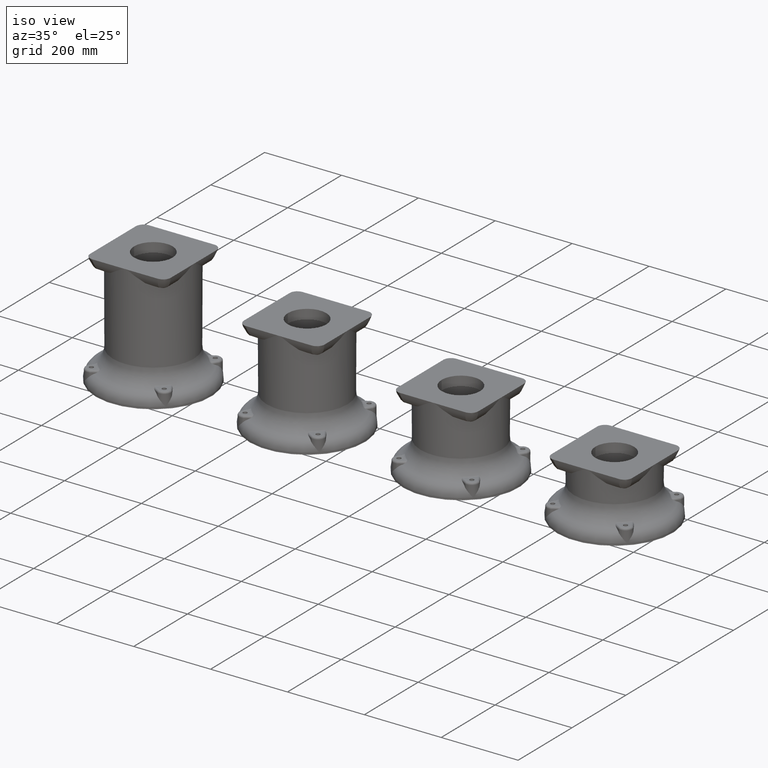
[diagram: clean part render]
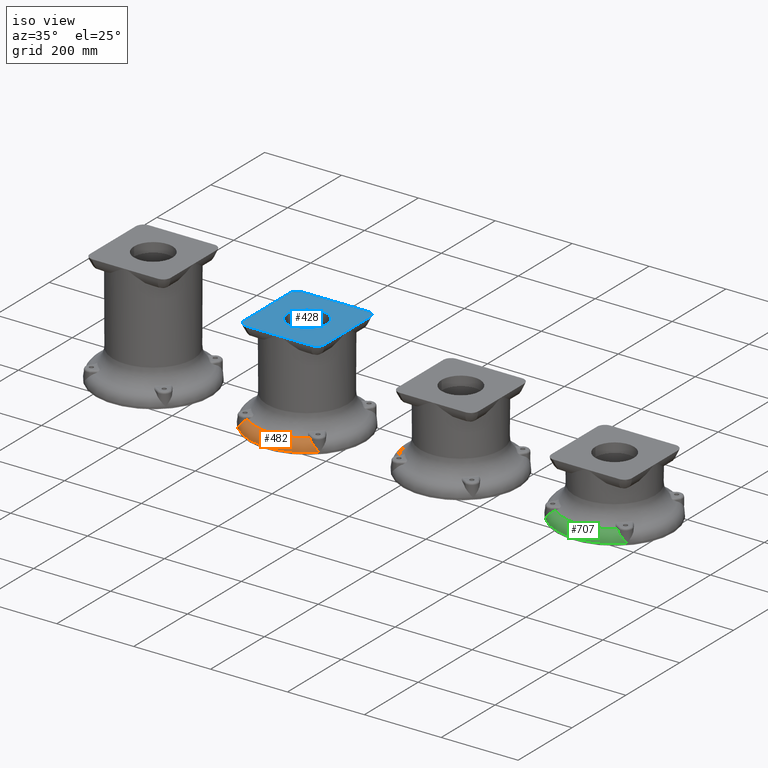
[diagram: same view with three faces highlighted in distinct colors, each labeled with its STEP entity id]
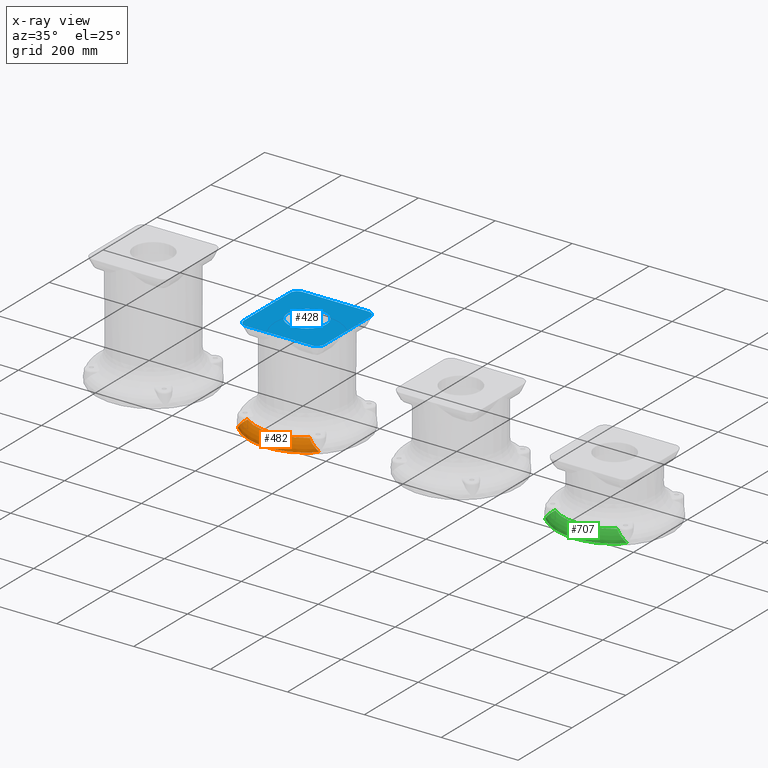
[diagram: x-ray of the same camera — body ghosted, the three highlighted faces saturated]
A machine part, iso view with three faces highlighted in distinct colors.
The next image is the same camera in x-ray (body ghosted, the three faces saturated) — at least one of them is partly hidden behind the body in this view.
Their STEP definitions:

[orange] entity #482 — the highlighted toroidal blend (fillet) surface has major radius 120 mm and minor (blend) radius 30 mm.
#482=ADVANCED_FACE('',(#1072),#1073,.T.);
#1072=FACE_OUTER_BOUND('',#3971,.T.);
#1073=TOROIDAL_SURFACE('',#3972,120.0,30.0);
#3971=EDGE_LOOP('',(#8235,#8236,#8237,#8238,#8239,#8240,#8241,#8242));
#3972=AXIS2_PLACEMENT_3D('',#8243,#8244,#8245);
#8235=ORIENTED_EDGE('',*,*,#10492,.F.);
#8236=ORIENTED_EDGE('',*,*,#10493,.T.);
#8237=ORIENTED_EDGE('',*,*,#10353,.T.);
#8238=ORIENTED_EDGE('',*,*,#10494,.T.);
#8239=ORIENTED_EDGE('',*,*,#10495,.F.);
#8240=ORIENTED_EDGE('',*,*,#10491,.T.);
#8241=ORIENTED_EDGE('',*,*,#10496,.F.);
#8242=ORIENTED_EDGE('',*,*,#10497,.T.);
#8243=CARTESIAN_POINT('',(0.0,0.0,80.0));
#8244=DIRECTION('',(0.0,0.0,1.0));
#8245=DIRECTION('',(1.0,0.0,0.0));
#10353=EDGE_CURVE('',#11524,#11522,#11525,.T.);
#10491=EDGE_CURVE('',#11750,#11743,#11753,.T.);
#10492=EDGE_CURVE('',#11754,#11755,#11756,.F.);
#10493=EDGE_CURVE('',#11754,#11524,#11757,.T.);
#10494=EDGE_CURVE('',#11522,#11758,#11759,.T.);
#10495=EDGE_CURVE('',#11750,#11758,#11760,.F.);
#10496=EDGE_CURVE('',#11761,#11743,#11762,.T.);
#10497=EDGE_CURVE('',#11761,#11755,#11763,.T.);
#11522=VERTEX_POINT('',#15293);
#11524=VERTEX_POINT('',#15300);
#11525=CIRCLE('',#15301,133.125);
#11743=VERTEX_POINT('',#16199);
#11750=VERTEX_POINT('',#16245);
#11753=B_SPLINE_CURVE_WITH_KNOTS('',3,(#16250,#16251,#16252,#16253,#16254,#16255,#16256,#16257,#16258,#16259,#16260,#16261,#16262,#16263,#16264,#16265,#16266,#16267,#16268,#16269,#16270,#16271,#16272,#16273),.UNSPECIFIED.,.F.,.F.,(4,1,1,1,1,1,1,1,1,1,1,1,1,1,1,1,1,1,1,1,1,4),(0.0,0.0210061949442978,0.0423546681236517,0.0640477933734809,0.0860878650487078,0.108477098512464,0.131217630401813,0.154311518682519,0.17776074250425,0.201567201867498,0.225732717112957,0.250259028243886,0.369757908210348,0.500911456809594,0.617665694748252,0.750104951457485,0.780043044277266,0.814663979793044,0.853969817670727,0.897961644722372,0.946639126762223,1.0),.UNSPECIFIED.);
#11754=VERTEX_POINT('',#16274);
#11755=VERTEX_POINT('',#16275);
#11756=B_SPLINE_CURVE_WITH_KNOTS('',3,(#16276,#16277,#16278,#16279,#16280,#16281,#16282,#16283),.UNSPECIFIED.,.F.,.F.,(4,2,2,4),(0.0021766173528335,0.00444668017102696,0.00558171158012371,0.00671674298922046),.UNSPECIFIED.);
#11757=B_SPLINE_CURVE_WITH_KNOTS('',3,(#16284,#16285,#16286,#16287,#16288,#16289,#16290,#16291),.UNSPECIFIED.,.F.,.F.,(4,2,2,4),(0.00345580596913878,0.00794917799839141,0.0101958640130178,0.0124425500276441),.UNSPECIFIED.);
#11758=VERTEX_POINT('',#16292);
#11759=B_SPLINE_CURVE_WITH_KNOTS('',3,(#16293,#16294,#16295,#16296,#16297,#16298),.UNSPECIFIED.,.F.,.F.,(4,2,4),(0.00405537014209206,0.00854739241191853,0.013039414681745),.UNSPECIFIED.);
#11760=B_SPLINE_CURVE_WITH_KNOTS('',3,(#16299,#16300,#16301,#16302,#16303,#16304),.UNSPECIFIED.,.F.,.F.,(4,2,4),(0.00138334369037796,0.00365447802298177,0.00592561235558557),.UNSPECIFIED.);
#11761=VERTEX_POINT('',#16305);
#11762=CIRCLE('',#16306,150.0);
#11763=B_SPLINE_CURVE_WITH_KNOTS('',3,(#16307,#16308,#16309,#16310,#16311,#16312,#16313,#16314,#16315,#16316,#16317,#16318,#16319,#16320,#16321,#16322,#16323,#16324,#16325,#16326,#16327,#16328,#16329,#16330,#16331,#16332),.UNSPECIFIED.,.F.,.F.,(4,1,1,1,1,1,1,1,1,1,1,1,1,1,1,1,1,1,1,1,1,1,1,4),(0.0,0.0252030475860433,0.0494092021767297,0.0726180614176942,0.0948293374264041,0.116042844623042,0.136258488055104,0.155476252241875,0.173696190563246,0.190918415217275,0.207143087772713,0.222370410347515,0.236600617453956,0.249833968567778,0.382140533692993,0.498793751715999,0.63003439929707,0.749611617240383,0.79432463478776,0.837828973966192,0.880135985314257,0.921257917638961,0.961207911487508,1.0),.UNSPECIFIED.);
#15293=CARTESIAN_POINT('',(80.609475381766,-105.945165551225,53.0234476813657));
#15300=CARTESIAN_POINT('',(-80.6094753817619,-105.945165551228,53.0234476813657));
#15301=AXIS2_PLACEMENT_3D('',#21183,#21184,#21185);
#16199=CARTESIAN_POINT('',(106.066017177984,-106.06601717798,80.0));
#16245=CARTESIAN_POINT('',(90.3884882851788,-110.930389357194,60.8503376849144));
#16250=CARTESIAN_POINT('',(90.3884882851792,-110.930389357193,60.8503376849144));
#16251=CARTESIAN_POINT('',(90.5184967929725,-110.953660650868,60.9723133199089));
#16252=CARTESIAN_POINT('',(90.7806321875757,-111.000582424327,61.2182520800253));
#16253=CARTESIAN_POINT('',(91.1756280480703,-111.059626751469,61.5937530672433));
#16254=CARTESIAN_POINT('',(91.5757280885319,-111.110824225616,61.9778914263354));
#16255=CARTESIAN_POINT('',(91.9806597029722,-111.153025087818,62.3709899998688));
#16256=CARTESIAN_POINT('',(92.3902568235033,-111.186193825936,62.7730220130926));
#16257=CARTESIAN_POINT('',(92.8043148266972,-111.209985105269,63.1840485026395));
#16258=CARTESIAN_POINT('',(93.2226300521873,-111.224134826452,63.6040977780695));
#16259=CARTESIAN_POINT('',(93.6449893438946,-111.228353110776,64.0331986516544));
#16260=CARTESIAN_POINT('',(94.0711707439575,-111.222354053141,64.4713689233363));
#16261=CARTESIAN_POINT('',(94.5009509311768,-111.205847548153,64.918625897911));
#16262=CARTESIAN_POINT('',(95.4909834585652,-111.143435162616,65.9617009110671));
#16263=CARTESIAN_POINT('',(97.0761373637495,-110.926487566561,67.6940638814795));
#16264=CARTESIAN_POINT('',(99.0924203367367,-110.394588029115,70.0527555717993));
#16265=CARTESIAN_POINT('',(101.063526464482,-109.615485544782,72.5268027516962));
#16266=CARTESIAN_POINT('',(102.414559096924,-108.889383032899,74.362170597017));
#16267=CARTESIAN_POINT('',(103.320158056574,-108.310746679848,75.6612748401586));
#16268=CARTESIAN_POINT('',(103.787467879008,-107.99199107085,76.34705832598));
#16269=CARTESIAN_POINT('',(104.304252990625,-107.613227950719,77.126881085657));
#16270=CARTESIAN_POINT('',(104.864307968284,-107.167958845092,78.0009624028675));
#16271=CARTESIAN_POINT('',(105.463288328425,-106.651994903792,78.9692608231564));
#16272=CARTESIAN_POINT('',(105.859052587199,-106.267229780166,79.6460655366039));
#16273=CARTESIAN_POINT('',(106.066017177984,-106.06601717798,80.0));
#16274=CARTESIAN_POINT('',(-87.2149964624134,-109.75886492528,57.8114653002072));
#16275=CARTESIAN_POINT('',(-90.3884882851599,-110.930389357195,60.8503376849013));
#16276=CARTESIAN_POINT('',(-90.38848828516,-110.930389357195,60.8503376849013));
#16277=CARTESIAN_POINT('',(-89.8408025055957,-110.828642500508,60.3380149514585));
#16278=CARTESIAN_POINT('',(-89.3020510636323,-110.68165141325,59.8264272403407));
#16279=CARTESIAN_POINT('',(-88.5055357405004,-110.389460165435,59.0629312510746));
#16280=CARTESIAN_POINT('',(-88.2414514415667,-110.279736976147,58.8085233771018));
#16281=CARTESIAN_POINT('',(-87.7221537478758,-110.037095134328,58.3059126957033));
#16282=CARTESIAN_POINT('',(-87.4664987506371,-109.904069839088,58.0572909992695));
#16283=CARTESIAN_POINT('',(-87.2149964624134,-109.75886492528,57.8114653002072));
#16284=CARTESIAN_POINT('',(-87.2149964624134,-109.75886492528,57.8114653002072));
#16285=CARTESIAN_POINT('',(-86.2230818285435,-109.186182744402,56.8419388994601));
#16286=CARTESIAN_POINT('',(-85.1751990717371,-108.581187352681,55.9590136282079));
#16287=CARTESIAN_POINT('',(-83.5217607815456,-107.62657431075,54.7609097135984));
#16288=CARTESIAN_POINT('',(-82.956961391847,-107.30048723107,54.3826678854864));
#16289=CARTESIAN_POINT('',(-81.7998524174823,-106.632430053238,53.6687515663792));
#16290=CARTESIAN_POINT('',(-81.2080355015927,-106.290744397539,53.3335940060179));
#16291=CARTESIAN_POINT('',(-80.6094753817618,-105.945165551228,53.023447681366));
#16292=CARTESIAN_POINT('',(87.2149964624022,-109.758864925268,57.8114653001925));
#16293=CARTESIAN_POINT('',(80.6094753817659,-105.945165551225,53.0234476813659));
#16294=CARTESIAN_POINT('',(81.7936149025159,-106.628828822288,53.637014319149));
#16295=CARTESIAN_POINT('',(82.9386904090717,-107.28993847424,54.3406931138015));
#16296=CARTESIAN_POINT('',(85.1471595739555,-108.564998741083,55.9364729037604));
#16297=CARTESIAN_POINT('',(86.2151854333945,-109.181623758532,56.8342207316777));
#16298=CARTESIAN_POINT('',(87.2149964624022,-109.758864925268,57.8114653001925));
#16299=CARTESIAN_POINT('',(87.2149964624021,-109.758864925268,57.8114653001925));
#16300=CARTESIAN_POINT('',(87.7164948769745,-110.048405169921,58.3016445316086));
#16301=CARTESIAN_POINT('',(88.2323208855715,-110.288629096117,58.8009819728859));
#16302=CARTESIAN_POINT('',(89.2909985489842,-110.678192069749,59.8158923157082));
#16303=CARTESIAN_POINT('',(89.836435940872,-110.82783129771,60.3339303276456));
#16304=CARTESIAN_POINT('',(90.3884882851787,-110.930389357194,60.8503376849145));
#16305=CARTESIAN_POINT('',(-106.06601717798,-106.066017177984,80.0));
#16306=AXIS2_PLACEMENT_3D('',#21416,#21417,#21418);
#16307=CARTESIAN_POINT('',(-106.06601717798,-106.066017177985,80.0));
#16308=CARTESIAN_POINT('',(-105.968971189127,-106.161774975449,79.8328512592067));
#16309=CARTESIAN_POINT('',(-105.778717813329,-106.349502922189,79.5051652561849));
#16310=CARTESIAN_POINT('',(-105.491231617313,-106.617172317141,79.0235106197562));
#16311=CARTESIAN_POINT('',(-105.210392823943,-106.868238076357,78.5617872141092));
#16312=CARTESIAN_POINT('',(-104.936407276213,-107.102835167885,78.1200573695063));
#16313=CARTESIAN_POINT('',(-104.670133577737,-107.321792678855,77.6983716778219));
#16314=CARTESIAN_POINT('',(-104.412216965292,-107.525736638938,77.2967552304883));
#16315=CARTESIAN_POINT('',(-104.163307595137,-107.715313508247,76.9152145243272));
#16316=CARTESIAN_POINT('',(-103.924006751046,-107.891132850618,76.5537391025332));
#16317=CARTESIAN_POINT('',(-103.694881531127,-108.053779952026,76.2123041011897));
#16318=CARTESIAN_POINT('',(-103.476461100707,-108.203812631607,75.8908732831169));
#16319=CARTESIAN_POINT('',(-103.269242267249,-108.34175705007,75.5893988151051));
#16320=CARTESIAN_POINT('',(-103.07367666722,-108.468121072659,75.3078317934808));
#16321=CARTESIAN_POINT('',(-102.33535985372,-108.931830456697,74.2545010860823));
#16322=CARTESIAN_POINT('',(-101.06630539394,-109.614119296727,72.5305447096651));
#16323=CARTESIAN_POINT('',(-99.0962617772582,-110.393319262645,70.0573912973104));
#16324=CARTESIAN_POINT('',(-97.0798147239715,-110.92580781197,67.6981899418642));
#16325=CARTESIAN_POINT('',(-95.3775902078167,-111.159072262467,65.8377081554822));
#16326=CARTESIAN_POINT('',(-94.1507222688518,-111.224218902395,64.5516131473143));
#16327=CARTESIAN_POINT('',(-93.370568814047,-111.230705388429,63.7518532738585));
#16328=CARTESIAN_POINT('',(-92.6037852917478,-111.203639321468,62.982512686266));
#16329=CARTESIAN_POINT('',(-91.8515812452578,-111.143918394103,62.2436732974212));
#16330=CARTESIAN_POINT('',(-91.1154986097536,-111.056338197709,61.5341476344565));
#16331=CARTESIAN_POINT('',(-90.6284376433044,-110.971958702799,61.0760287830026));
#16332=CARTESIAN_POINT('',(-90.3884882851601,-110.930389357195,60.8503376849013));
#21183=CARTESIAN_POINT('',(0.0,0.0,53.0234476813657));
#21184=DIRECTION('',(0.0,0.0,1.0));
#21185=DIRECTION('',(1.0,0.0,0.0));
#21416=CARTESIAN_POINT('',(0.0,0.0,80.0));
#21417=DIRECTION('',(0.0,0.0,1.0));
#21418=DIRECTION('',(1.0,0.0,0.0));

[blue] entity #428 — the highlighted planar face has unit normal (-0, 0, -1).
#428=ADVANCED_FACE('',(#956,#957),#958,.F.);
#956=FACE_BOUND('',#2993,.T.);
#957=FACE_OUTER_BOUND('',#2994,.T.);
#958=PLANE('',#2995);
#2993=EDGE_LOOP('',(#7835));
#2994=EDGE_LOOP('',(#7836,#7837,#7838,#7839,#7840,#7841,#7842,#7843,#7844,#7845,#7846,#7847));
#2995=AXIS2_PLACEMENT_3D('',#7848,#7849,#7850);
#7835=ORIENTED_EDGE('',*,*,#10301,.T.);
#7836=ORIENTED_EDGE('',*,*,#10302,.F.);
#7837=ORIENTED_EDGE('',*,*,#10303,.F.);
#7838=ORIENTED_EDGE('',*,*,#10304,.F.);
#7839=ORIENTED_EDGE('',*,*,#10305,.F.);
#7840=ORIENTED_EDGE('',*,*,#10306,.F.);
#7841=ORIENTED_EDGE('',*,*,#10307,.F.);
#7842=ORIENTED_EDGE('',*,*,#10308,.F.);
#7843=ORIENTED_EDGE('',*,*,#10309,.F.);
#7844=ORIENTED_EDGE('',*,*,#10310,.F.);
#7845=ORIENTED_EDGE('',*,*,#10311,.F.);
#7846=ORIENTED_EDGE('',*,*,#10312,.F.);
#7847=ORIENTED_EDGE('',*,*,#10313,.F.);
#7848=CARTESIAN_POINT('',(0.0,0.0,-165.0));
#7849=DIRECTION('',(0.0,0.0,1.0));
#7850=DIRECTION('',(1.0,0.0,0.0));
#10301=EDGE_CURVE('',#11428,#11428,#11429,.T.);
#10302=EDGE_CURVE('',#11430,#11431,#11432,.T.);
#10303=EDGE_CURVE('',#11433,#11430,#11434,.T.);
#10304=EDGE_CURVE('',#11435,#11433,#11436,.F.);
#10305=EDGE_CURVE('',#11437,#11435,#11438,.T.);
#10306=EDGE_CURVE('',#11439,#11437,#11440,.T.);
#10307=EDGE_CURVE('',#11441,#11439,#11442,.F.);
#10308=EDGE_CURVE('',#11443,#11441,#11444,.T.);
#10309=EDGE_CURVE('',#11445,#11443,#11446,.T.);
#10310=EDGE_CURVE('',#11447,#11445,#11448,.F.);
#10311=EDGE_CURVE('',#11449,#11447,#11450,.T.);
#10312=EDGE_CURVE('',#11451,#11449,#11452,.T.);
#10313=EDGE_CURVE('',#11431,#11451,#11453,.F.);
#11428=VERTEX_POINT('',#14684);
#11429=CIRCLE('',#14685,50.0);
#11430=VERTEX_POINT('',#14686);
#11431=VERTEX_POINT('',#14687);
#11432=LINE('',#14688,#14689);
#11433=VERTEX_POINT('',#14690);
#11434=LINE('',#14691,#14692);
#11435=VERTEX_POINT('',#14693);
#11436=B_SPLINE_CURVE_WITH_KNOTS('',3,(#14694,#14695,#14696,#14697,#14698,#14699,#14700,#14701,#14702,#14703,#14704,#14705,#14706,#14707,#14708,#14709,#14710,#14711,#14712,#14713,#14714,#14715,#14716,#14717,#14718,#14719),.UNSPECIFIED.,.F.,.F.,(4,2,2,2,2,2,2,2,2,2,2,2,4),(1.22318236764312E-007,0.00387864147614489,0.00581790105509893,0.00775716063405297,0.011635679791961,0.013574939370915,0.0155141989498691,0.0193927181077771,0.0213319776867312,0.0232712372656852,0.0252104968446392,0.0271497564235932,0.0310282755815013),.UNSPECIFIED.);
#11437=VERTEX_POINT('',#14720);
#11438=LINE('',#14721,#14722);
#11439=VERTEX_POINT('',#14723);
#11440=LINE('',#14724,#14725);
#11441=VERTEX_POINT('',#14726);
#11442=B_SPLINE_CURVE_WITH_KNOTS('',3,(#14727,#14728,#14729,#14730,#14731,#14732,#14733,#14734,#14735,#14736,#14737,#14738,#14739,#14740,#14741,#14742,#14743,#14744,#14745,#14746,#14747,#14748,#14749,#14750,#14751,#14752),.UNSPECIFIED.,.F.,.F.,(4,2,2,2,2,2,2,2,2,2,2,2,4),(1.22318236821379E-007,0.00387864147614483,0.00581790105509885,0.00775716063405286,0.0116356797919609,0.0135749393709149,0.0155141989498689,0.019392718107777,0.021331977686731,0.0232712372656851,0.0252104968446391,0.0271497564235932,0.0310282755815013),.UNSPECIFIED.);
#11443=VERTEX_POINT('',#14753);
#11444=LINE('',#14754,#14755);
#11445=VERTEX_POINT('',#14756);
#11446=LINE('',#14757,#14758);
#11447=VERTEX_POINT('',#14759);
#11448=B_SPLINE_CURVE_WITH_KNOTS('',3,(#14760,#14761,#14762,#14763,#14764,#14765,#14766,#14767,#14768,#14769,#14770,#14771,#14772,#14773,#14774,#14775,#14776,#14777,#14778,#14779,#14780,#14781,#14782,#14783,#14784,#14785),.UNSPECIFIED.,.F.,.F.,(4,2,2,2,2,2,2,2,2,2,2,2,4),(1.22318236848725E-007,0.00387864147614494,0.00581790105509897,0.00775716063405301,0.011635679791961,0.0135749393709151,0.0155141989498691,0.0193927181077771,0.0213319776867312,0.0232712372656852,0.0252104968446392,0.0271497564235933,0.0310282755815014),.UNSPECIFIED.);
#11449=VERTEX_POINT('',#14786);
#11450=LINE('',#14787,#14788);
#11451=VERTEX_POINT('',#14789);
#11452=LINE('',#14790,#14791);
#11453=B_SPLINE_CURVE_WITH_KNOTS('',3,(#14792,#14793,#14794,#14795,#14796,#14797,#14798,#14799,#14800,#14801,#14802,#14803,#14804,#14805,#14806,#14807,#14808,#14809,#14810,#14811,#14812,#14813,#14814,#14815,#14816,#14817),.UNSPECIFIED.,.F.,.F.,(4,2,2,2,2,2,2,2,2,2,2,2,4),(1.22318228863855E-007,0.00387864129410259,0.00581790078203946,0.00775716026997632,0.0116356792458501,0.013574938733787,0.0155141982217238,0.0193927171975976,0.0213319766855345,0.0232712361734714,0.0252104956614083,0.0271497551493452,0.0310282741252189),.UNSPECIFIED.);
#14684=CARTESIAN_POINT('',(50.0,8.32667268468867E-014,-165.0));
#14685=AXIS2_PLACEMENT_3D('',#21159,#21160,#21161);
#14686=CARTESIAN_POINT('',(1.2490009027033E-013,105.0,-165.0));
#14687=CARTESIAN_POINT('',(-85.1318170254261,105.0,-165.0));
#14688=CARTESIAN_POINT('',(105.0,105.0,-165.0));
#14689=VECTOR('',#21162,1.0);
#14690=CARTESIAN_POINT('',(85.1318170254262,105.0,-165.0));
#14691=CARTESIAN_POINT('',(105.0,105.0,-165.0));
#14692=VECTOR('',#21163,1.0);
#14693=CARTESIAN_POINT('',(105.0,85.1318170254262,-165.0));
#14694=CARTESIAN_POINT('',(85.1318169962303,104.999793024721,-165.0));
#14695=CARTESIAN_POINT('',(86.4439731691245,104.999607932492,-165.0));
#14696=CARTESIAN_POINT('',(87.7329492499264,104.865938930835,-165.0));
#14697=CARTESIAN_POINT('',(89.6346459734306,104.482501019797,-165.0));
#14698=CARTESIAN_POINT('',(90.2631986699914,104.323901914006,-165.0));
#14699=CARTESIAN_POINT('',(91.509518512505,103.944594481515,-165.0));
#14700=CARTESIAN_POINT('',(92.1292624261452,103.722758874769,-165.0));
#14701=CARTESIAN_POINT('',(93.933962238171,102.977166623461,-165.0));
#14702=CARTESIAN_POINT('',(95.0768850562862,102.371587334919,-165.0));
#14703=CARTESIAN_POINT('',(96.6999604822827,101.29865163689,-165.0));
#14704=CARTESIAN_POINT('',(97.2268693634915,100.91232145208,-165.0));
#14705=CARTESIAN_POINT('',(98.2427529879269,100.085130616114,-165.0));
#14706=CARTESIAN_POINT('',(98.7255333381023,99.6495041044289,-165.0));
#14707=CARTESIAN_POINT('',(100.098926681934,98.2770011987545,-165.0));
#14708=CARTESIAN_POINT('',(100.915442622427,97.2752462568297,-165.0));
#14709=CARTESIAN_POINT('',(101.996345890965,95.6466423247208,-165.0));
#14710=CARTESIAN_POINT('',(102.332841129038,95.0811023230436,-165.0));
#14711=CARTESIAN_POINT('',(102.943426151715,93.9320172409059,-165.0));
#14712=CARTESIAN_POINT('',(103.21956540807,93.3456854344183,-165.0));
#14713=CARTESIAN_POINT('',(103.714829030738,92.1499656079294,-165.0));
#14714=CARTESIAN_POINT('',(103.933951929479,91.5405769944578,-165.0));
#14715=CARTESIAN_POINT('',(104.314318791248,90.2983941431457,-165.0));
#14716=CARTESIAN_POINT('',(104.476059344235,89.6629693822896,-165.0));
#14717=CARTESIAN_POINT('',(104.865996075024,87.7397388094333,-165.0));
#14718=CARTESIAN_POINT('',(104.999608025533,86.4433135832475,-165.0));
#14719=CARTESIAN_POINT('',(104.999793024721,85.1318169962305,-165.0));
#14720=CARTESIAN_POINT('',(105.0,0.0,-165.0));
#14721=CARTESIAN_POINT('',(105.0,-105.0,-165.0));
#14722=VECTOR('',#21164,1.0);
#14723=CARTESIAN_POINT('',(105.0,-85.1318170254261,-165.0));
#14724=CARTESIAN_POINT('',(105.0,-105.0,-165.0));
#14725=VECTOR('',#21165,1.0);
#14726=CARTESIAN_POINT('',(85.1318170254262,-105.0,-165.0));
#14727=CARTESIAN_POINT('',(104.999793024721,-85.1318169962303,-165.0));
#14728=CARTESIAN_POINT('',(104.999607932492,-86.4439731691246,-165.0));
#14729=CARTESIAN_POINT('',(104.865938930835,-87.7329492499263,-165.0));
#14730=CARTESIAN_POINT('',(104.482501019797,-89.6346459734306,-165.0));
#14731=CARTESIAN_POINT('',(104.323901914006,-90.2631986699913,-165.0));
#14732=CARTESIAN_POINT('',(103.944594481515,-91.5095185125049,-165.0));
#14733=CARTESIAN_POINT('',(103.722758874769,-92.1292624261451,-165.0));
#14734=CARTESIAN_POINT('',(102.977166623461,-93.9339622381709,-165.0));
#14735=CARTESIAN_POINT('',(102.371587334919,-95.076885056286,-165.0));
#14736=CARTESIAN_POINT('',(101.298651636889,-96.6999604822826,-165.0));
#14737=CARTESIAN_POINT('',(100.91232145208,-97.2268693634914,-165.0));
#14738=CARTESIAN_POINT('',(100.085130616114,-98.2427529879268,-165.0));
#14739=CARTESIAN_POINT('',(99.6495041044288,-98.7255333381022,-165.0));
#14740=CARTESIAN_POINT('',(98.2770011987544,-100.098926681933,-165.0));
#14741=CARTESIAN_POINT('',(97.2752462568296,-100.915442622427,-165.0));
#14742=CARTESIAN_POINT('',(95.6466423247208,-101.996345890965,-165.0));
#14743=CARTESIAN_POINT('',(95.0811023230436,-102.332841129038,-165.0));
#14744=CARTESIAN_POINT('',(93.9320172409059,-102.943426151715,-165.0));
#14745=CARTESIAN_POINT('',(93.3456854344183,-103.21956540807,-165.0));
#14746=CARTESIAN_POINT('',(92.1499656079295,-103.714829030737,-165.0));
#14747=CARTESIAN_POINT('',(91.5405769944578,-103.933951929479,-165.0));
#14748=CARTESIAN_POINT('',(90.2983941431457,-104.314318791248,-165.0));
#14749=CARTESIAN_POINT('',(89.6629693822895,-104.476059344235,-165.0));
#14750=CARTESIAN_POINT('',(87.7397388094333,-104.865996075024,-165.0));
#14751=CARTESIAN_POINT('',(86.4433135832476,-104.999608025533,-165.0));
#14752=CARTESIAN_POINT('',(85.1318169962306,-104.999793024721,-165.0));
#14753=CARTESIAN_POINT('',(1.2490009027033E-013,-105.0,-165.0));
#14754=CARTESIAN_POINT('',(-105.0,-105.0,-165.0));
#14755=VECTOR('',#21166,1.0);
#14756=CARTESIAN_POINT('',(-85.1318170254261,-105.0,-165.0));
#14757=CARTESIAN_POINT('',(-105.0,-105.0,-165.0));
#14758=VECTOR('',#21167,1.0);
#14759=CARTESIAN_POINT('',(-105.0,-85.1318170254261,-165.0));
#14760=CARTESIAN_POINT('',(-85.1318169962304,-104.999793024721,-165.0));
#14761=CARTESIAN_POINT('',(-86.4439731691246,-104.999607932492,-165.0));
#14762=CARTESIAN_POINT('',(-87.7329492499264,-104.865938930835,-165.0));
#14763=CARTESIAN_POINT('',(-89.6346459734306,-104.482501019797,-165.0));
#14764=CARTESIAN_POINT('',(-90.2631986699915,-104.323901914006,-165.0));
#14765=CARTESIAN_POINT('',(-91.509518512505,-103.944594481515,-165.0));
#14766=CARTESIAN_POINT('',(-92.1292624261452,-103.722758874769,-165.0));
#14767=CARTESIAN_POINT('',(-93.933962238171,-102.977166623461,-165.0));
#14768=CARTESIAN_POINT('',(-95.0768850562862,-102.371587334919,-165.0));
#14769=CARTESIAN_POINT('',(-96.6999604822827,-101.298651636889,-165.0));
#14770=CARTESIAN_POINT('',(-97.2268693634916,-100.91232145208,-165.0));
#14771=CARTESIAN_POINT('',(-98.242752987927,-100.085130616114,-165.0));
#14772=CARTESIAN_POINT('',(-98.7255333381023,-99.6495041044286,-165.0));
#14773=CARTESIAN_POINT('',(-100.098926681934,-98.2770011987543,-165.0));
#14774=CARTESIAN_POINT('',(-100.915442622427,-97.2752462568295,-165.0));
#14775=CARTESIAN_POINT('',(-101.996345890965,-95.6466423247205,-165.0));
#14776=CARTESIAN_POINT('',(-102.332841129038,-95.0811023230433,-165.0));
#14777=CARTESIAN_POINT('',(-102.943426151715,-93.9320172409057,-165.0));
#14778=CARTESIAN_POINT('',(-103.21956540807,-93.3456854344181,-165.0));
#14779=CARTESIAN_POINT('',(-103.714829030737,-92.1499656079292,-165.0));
#14780=CARTESIAN_POINT('',(-103.933951929479,-91.5405769944575,-165.0));
#14781=CARTESIAN_POINT('',(-104.314318791248,-90.2983941431454,-165.0));
#14782=CARTESIAN_POINT('',(-104.476059344235,-89.6629693822892,-165.0));
#14783=CARTESIAN_POINT('',(-104.865996075024,-87.739738809433,-165.0));
#14784=CARTESIAN_POINT('',(-104.999608025533,-86.4433135832472,-165.0));
#14785=CARTESIAN_POINT('',(-104.999793024721,-85.1318169962301,-165.0));
#14786=CARTESIAN_POINT('',(-105.0,1.2490009027033E-013,-165.0));
#14787=CARTESIAN_POINT('',(-105.0,105.0,-165.0));
#14788=VECTOR('',#21168,1.0);
#14789=CARTESIAN_POINT('',(-105.0,85.1318170254262,-165.0));
#14790=CARTESIAN_POINT('',(-105.0,105.0,-165.0));
#14791=VECTOR('',#21169,1.0);
#14792=CARTESIAN_POINT('',(-104.999793024721,85.1318169962305,-165.0));
#14793=CARTESIAN_POINT('',(-104.999607932488,86.4439731920991,-165.0));
#14794=CARTESIAN_POINT('',(-104.86593892682,87.7329492441071,-165.0));
#14795=CARTESIAN_POINT('',(-104.482501045146,89.6346458605727,-165.0));
#14796=CARTESIAN_POINT('',(-104.323901954912,90.2631985106765,-165.0));
#14797=CARTESIAN_POINT('',(-103.944594572109,91.5095182397382,-165.0));
#14798=CARTESIAN_POINT('',(-103.722758966517,92.1292621869831,-165.0));
#14799=CARTESIAN_POINT('',(-102.977166673804,93.9339621504939,-165.0));
#14800=CARTESIAN_POINT('',(-102.371587393107,95.0768849310604,-165.0));
#14801=CARTESIAN_POINT('',(-101.298651868505,96.6999601505085,-165.0));
#14802=CARTESIAN_POINT('',(-100.912321941946,97.2268687291514,-165.0));
#14803=CARTESIAN_POINT('',(-100.085130901733,98.2427526698844,-165.0));
#14804=CARTESIAN_POINT('',(-99.6495043076842,98.7255331243795,-165.0));
#14805=CARTESIAN_POINT('',(-98.277001244924,100.098926656405,-165.0));
#14806=CARTESIAN_POINT('',(-97.2752463171475,100.915442557294,-165.0));
#14807=CARTESIAN_POINT('',(-95.6466426941111,101.996345658351,-165.0));
#14808=CARTESIAN_POINT('',(-95.0811026357998,102.332840953627,-165.0));
#14809=CARTESIAN_POINT('',(-93.9320173755611,102.943426089386,-165.0));
#14810=CARTESIAN_POINT('',(-93.3456855162316,103.219565371606,-165.0));
#14811=CARTESIAN_POINT('',(-92.1499656645216,103.714829009874,-165.0));
#14812=CARTESIAN_POINT('',(-91.5405770786126,103.9339518982,-165.0));
#14813=CARTESIAN_POINT('',(-90.2983943736931,104.314318726163,-165.0));
#14814=CARTESIAN_POINT('',(-89.6629698185469,104.476059244409,-165.0));
#14815=CARTESIAN_POINT('',(-87.7397389402465,104.86599607125,-165.0));
#14816=CARTESIAN_POINT('',(-86.4433135986769,104.999608025531,-165.0));
#14817=CARTESIAN_POINT('',(-85.1318169962302,104.999793024721,-165.0));
#21159=CARTESIAN_POINT('',(7.63278329429795E-014,8.32667268468867E-014,-165.0));
#21160=DIRECTION('',(0.0,0.0,1.0));
#21161=DIRECTION('',(1.0,0.0,0.0));
#21162=DIRECTION('',(-1.0,0.0,0.0));
#21163=DIRECTION('',(-1.0,0.0,0.0));
#21164=DIRECTION('',(0.0,1.0,0.0));
#21165=DIRECTION('',(0.0,1.0,0.0));
#21166=DIRECTION('',(1.0,0.0,0.0));
#21167=DIRECTION('',(1.0,0.0,0.0));
#21168=DIRECTION('',(0.0,-1.0,0.0));
#21169=DIRECTION('',(0.0,-1.0,0.0));

[green] entity #707 — the highlighted toroidal blend (fillet) surface has major radius 120 mm and minor (blend) radius 30 mm.
#707=ADVANCED_FACE('',(#1571),#1572,.T.);
#1571=FACE_OUTER_BOUND('',#6852,.T.);
#1572=TOROIDAL_SURFACE('',#6853,120.0,30.0);
#6852=EDGE_LOOP('',(#9887,#9888,#9889,#9890,#9891,#9892,#9893,#9894));
#6853=AXIS2_PLACEMENT_3D('',#9895,#9896,#9897);
#9887=ORIENTED_EDGE('',*,*,#10984,.F.);
#9888=ORIENTED_EDGE('',*,*,#10998,.T.);
#9889=ORIENTED_EDGE('',*,*,#10799,.T.);
#9890=ORIENTED_EDGE('',*,*,#11010,.T.);
#9891=ORIENTED_EDGE('',*,*,#11011,.F.);
#9892=ORIENTED_EDGE('',*,*,#10791,.T.);
#9893=ORIENTED_EDGE('',*,*,#11012,.F.);
#9894=ORIENTED_EDGE('',*,*,#10996,.T.);
#9895=CARTESIAN_POINT('',(0.0,0.0,-20.0));
#9896=DIRECTION('',(0.0,0.0,1.0));
#9897=DIRECTION('',(1.0,0.0,0.0));
#10791=EDGE_CURVE('',#12224,#12231,#12233,.T.);
#10799=EDGE_CURVE('',#12249,#12247,#12250,.T.);
#10984=EDGE_CURVE('',#12558,#12556,#12560,.F.);
#10996=EDGE_CURVE('',#12579,#12556,#12580,.T.);
#10998=EDGE_CURVE('',#12558,#12249,#12582,.T.);
#11010=EDGE_CURVE('',#12247,#12598,#12599,.T.);
#11011=EDGE_CURVE('',#12224,#12598,#12600,.F.);
#11012=EDGE_CURVE('',#12579,#12231,#12601,.T.);
#12224=VERTEX_POINT('',#18808);
#12231=VERTEX_POINT('',#18817);
#12233=B_SPLINE_CURVE_WITH_KNOTS('',3,(#18844,#18845,#18846,#18847,#18848,#18849,#18850,#18851,#18852,#18853,#18854,#18855,#18856,#18857,#18858,#18859,#18860,#18861,#18862,#18863,#18864,#18865,#18866,#18867),.UNSPECIFIED.,.F.,.F.,(4,1,1,1,1,1,1,1,1,1,1,1,1,1,1,1,1,1,1,1,1,4),(0.0,0.0210061949442979,0.0423546681236517,0.0640477933734807,0.0860878650487076,0.108477098512464,0.131217630401813,0.154311518682519,0.17776074250425,0.201567201867498,0.225732717112957,0.250259028243886,0.369757908210348,0.500911456809593,0.617665694748252,0.750104951457486,0.780043044277265,0.814663979793044,0.853969817670727,0.897961644722372,0.946639126762223,1.0),.UNSPECIFIED.);
#12247=VERTEX_POINT('',#18956);
#12249=VERTEX_POINT('',#18963);
#12250=CIRCLE('',#18964,133.125);
#12556=VERTEX_POINT('',#20489);
#12558=VERTEX_POINT('',#20492);
#12560=B_SPLINE_CURVE_WITH_KNOTS('',3,(#20495,#20496,#20497,#20498,#20499,#20500,#20501,#20502),.UNSPECIFIED.,.F.,.F.,(4,2,2,4),(0.0021766173528335,0.00444668017102697,0.00558171158012372,0.00671674298922046),.UNSPECIFIED.);
#12579=VERTEX_POINT('',#20552);
#12580=B_SPLINE_CURVE_WITH_KNOTS('',3,(#20553,#20554,#20555,#20556,#20557,#20558,#20559,#20560,#20561,#20562,#20563,#20564,#20565,#20566,#20567,#20568,#20569,#20570,#20571,#20572,#20573,#20574,#20575,#20576,#20577,#20578),.UNSPECIFIED.,.F.,.F.,(4,1,1,1,1,1,1,1,1,1,1,1,1,1,1,1,1,1,1,1,1,1,1,4),(0.0,0.0252030475860431,0.0494092021767299,0.0726180614176943,0.094829337426404,0.116042844623042,0.136258488055104,0.155476252241875,0.173696190563246,0.190918415217275,0.207143087772713,0.222370410347515,0.236600617453956,0.249833968567778,0.382140533692993,0.498793751715999,0.63003439929707,0.749611617240383,0.79432463478776,0.837828973966192,0.880135985314256,0.921257917638961,0.961207911487507,1.0),.UNSPECIFIED.);
#12582=B_SPLINE_CURVE_WITH_KNOTS('',3,(#20603,#20604,#20605,#20606,#20607,#20608,#20609,#20610),.UNSPECIFIED.,.F.,.F.,(4,2,2,4),(0.00345580596913879,0.00794917799839147,0.0101958640130178,0.0124425500276441),.UNSPECIFIED.);
#12598=VERTEX_POINT('',#20750);
#12599=B_SPLINE_CURVE_WITH_KNOTS('',3,(#20751,#20752,#20753,#20754,#20755,#20756),.UNSPECIFIED.,.F.,.F.,(4,2,4),(0.00405537014209206,0.00854739241191855,0.013039414681745),.UNSPECIFIED.);
#12600=B_SPLINE_CURVE_WITH_KNOTS('',3,(#20757,#20758,#20759,#20760,#20761,#20762),.UNSPECIFIED.,.F.,.F.,(4,2,4),(0.00138334369037796,0.00365447802298177,0.00592561235558557),.UNSPECIFIED.);
#12601=CIRCLE('',#20763,150.0);
#18808=CARTESIAN_POINT('',(90.3884882851788,-110.930389357194,-39.1496623150854));
#18817=CARTESIAN_POINT('',(106.066017177984,-106.06601717798,-20.0));
#18844=CARTESIAN_POINT('',(90.3884882851792,-110.930389357193,-39.1496623150856));
#18845=CARTESIAN_POINT('',(90.5184967929725,-110.953660650868,-39.0276866800911));
#18846=CARTESIAN_POINT('',(90.7806321875757,-111.000582424327,-38.7817479199747));
#18847=CARTESIAN_POINT('',(91.1756280480703,-111.059626751469,-38.4062469327567));
#18848=CARTESIAN_POINT('',(91.5757280885318,-111.110824225615,-38.0221085736647));
#18849=CARTESIAN_POINT('',(91.9806597029723,-111.153025087818,-37.6290100001312));
#18850=CARTESIAN_POINT('',(92.3902568235033,-111.186193825936,-37.2269779869074));
#18851=CARTESIAN_POINT('',(92.8043148266972,-111.209985105269,-36.8159514973605));
#18852=CARTESIAN_POINT('',(93.2226300521873,-111.224134826452,-36.3959022219305));
#18853=CARTESIAN_POINT('',(93.6449893438946,-111.228353110776,-35.9668013483456));
#18854=CARTESIAN_POINT('',(94.0711707439575,-111.222354053141,-35.5286310766637));
#18855=CARTESIAN_POINT('',(94.5009509311769,-111.205847548153,-35.081374102089));
#18856=CARTESIAN_POINT('',(95.4909834585651,-111.143435162616,-34.038299088933));
#18857=CARTESIAN_POINT('',(97.0761373637496,-110.926487566561,-32.3059361185205));
#18858=CARTESIAN_POINT('',(99.0924203367367,-110.394588029115,-29.9472444282007));
#18859=CARTESIAN_POINT('',(101.063526464482,-109.615485544782,-27.4731972483039));
#18860=CARTESIAN_POINT('',(102.414559096924,-108.889383032899,-25.6378294029829));
#18861=CARTESIAN_POINT('',(103.320158056574,-108.310746679848,-24.3387251598415));
#18862=CARTESIAN_POINT('',(103.787467879008,-107.99199107085,-23.65294167402));
#18863=CARTESIAN_POINT('',(104.304252990625,-107.613227950719,-22.873118914343));
#18864=CARTESIAN_POINT('',(104.864307968284,-107.167958845092,-21.9990375971325));
#18865=CARTESIAN_POINT('',(105.463288328425,-106.651994903792,-21.0307391768436));
#18866=CARTESIAN_POINT('',(105.859052587199,-106.267229780166,-20.3539344633961));
#18867=CARTESIAN_POINT('',(106.066017177984,-106.06601717798,-20.0));
#18956=CARTESIAN_POINT('',(80.609475381766,-105.945165551225,-46.9765523186342));
#18963=CARTESIAN_POINT('',(-80.6094753817619,-105.945165551228,-46.9765523186342));
#18964=AXIS2_PLACEMENT_3D('',#21745,#21746,#21747);
#20489=CARTESIAN_POINT('',(-90.3884882851599,-110.930389357195,-39.1496623150985));
#20492=CARTESIAN_POINT('',(-87.2149964624134,-109.75886492528,-42.1885346997927));
#20495=CARTESIAN_POINT('',(-90.3884882851601,-110.930389357195,-39.1496623150986));
#20496=CARTESIAN_POINT('',(-89.8408025055958,-110.828642500508,-39.6619850485414));
#20497=CARTESIAN_POINT('',(-89.3020510636323,-110.68165141325,-40.1735727596592));
#20498=CARTESIAN_POINT('',(-88.5055357405004,-110.389460165435,-40.9370687489253));
#20499=CARTESIAN_POINT('',(-88.2414514415668,-110.279736976147,-41.1914766228982));
#20500=CARTESIAN_POINT('',(-87.7221537478759,-110.037095134328,-41.6940873042966));
#20501=CARTESIAN_POINT('',(-87.4664987506372,-109.904069839088,-41.9427090007305));
#20502=CARTESIAN_POINT('',(-87.2149964624135,-109.75886492528,-42.1885346997928));
#20552=CARTESIAN_POINT('',(-106.06601717798,-106.066017177984,-20.0));
#20553=CARTESIAN_POINT('',(-106.06601717798,-106.066017177985,-20.0));
#20554=CARTESIAN_POINT('',(-105.968971189127,-106.161774975449,-20.1671487407933));
#20555=CARTESIAN_POINT('',(-105.778717813329,-106.349502922189,-20.4948347438151));
#20556=CARTESIAN_POINT('',(-105.491231617313,-106.617172317141,-20.9764893802438));
#20557=CARTESIAN_POINT('',(-105.210392823943,-106.868238076357,-21.4382127858908));
#20558=CARTESIAN_POINT('',(-104.936407276213,-107.102835167885,-21.8799426304937));
#20559=CARTESIAN_POINT('',(-104.670133577737,-107.321792678855,-22.3016283221781));
#20560=CARTESIAN_POINT('',(-104.412216965292,-107.525736638938,-22.7032447695117));
#20561=CARTESIAN_POINT('',(-104.163307595137,-107.715313508247,-23.0847854756728));
#20562=CARTESIAN_POINT('',(-103.924006751046,-107.891132850618,-23.4462608974668));
#20563=CARTESIAN_POINT('',(-103.694881531127,-108.053779952026,-23.7876958988103));
#20564=CARTESIAN_POINT('',(-103.476461100707,-108.203812631607,-24.1091267168831));
#20565=CARTESIAN_POINT('',(-103.269242267249,-108.34175705007,-24.4106011848949));
#20566=CARTESIAN_POINT('',(-103.07367666722,-108.468121072659,-24.6921682065192));
#20567=CARTESIAN_POINT('',(-102.33535985372,-108.931830456697,-25.7454989139176));
#20568=CARTESIAN_POINT('',(-101.06630539394,-109.614119296727,-27.469455290335));
#20569=CARTESIAN_POINT('',(-99.0962617772582,-110.393319262645,-29.9426087026896));
#20570=CARTESIAN_POINT('',(-97.0798147239715,-110.92580781197,-32.3018100581358));
#20571=CARTESIAN_POINT('',(-95.3775902078167,-111.159072262467,-34.1622918445178));
#20572=CARTESIAN_POINT('',(-94.1507222688518,-111.224218902395,-35.4483868526857));
#20573=CARTESIAN_POINT('',(-93.370568814047,-111.230705388429,-36.2481467261415));
#20574=CARTESIAN_POINT('',(-92.6037852917478,-111.203639321468,-37.017487313734));
#20575=CARTESIAN_POINT('',(-91.8515812452578,-111.143918394103,-37.7563267025788));
#20576=CARTESIAN_POINT('',(-91.1154986097536,-111.056338197709,-38.4658523655435));
#20577=CARTESIAN_POINT('',(-90.6284376433044,-110.971958702799,-38.9239712169975));
#20578=CARTESIAN_POINT('',(-90.3884882851601,-110.930389357195,-39.1496623150987));
#20603=CARTESIAN_POINT('',(-87.2149964624135,-109.75886492528,-42.1885346997927));
#20604=CARTESIAN_POINT('',(-86.2230818285435,-109.186182744402,-43.1580611005398));
#20605=CARTESIAN_POINT('',(-85.1751990717372,-108.581187352681,-44.0409863717921));
#20606=CARTESIAN_POINT('',(-83.5217607815457,-107.62657431075,-45.2390902864016));
#20607=CARTESIAN_POINT('',(-82.9569613918471,-107.30048723107,-45.6173321145135));
#20608=CARTESIAN_POINT('',(-81.7998524174823,-106.632430053238,-46.3312484336208));
#20609=CARTESIAN_POINT('',(-81.2080355015928,-106.290744397539,-46.6664059939821));
#20610=CARTESIAN_POINT('',(-80.6094753817619,-105.945165551228,-46.976552318634));
#20750=CARTESIAN_POINT('',(87.2149964624022,-109.758864925268,-42.1885346998073));
#20751=CARTESIAN_POINT('',(80.6094753817659,-105.945165551225,-46.9765523186341));
#20752=CARTESIAN_POINT('',(81.793614902516,-106.628828822288,-46.3629856808509));
#20753=CARTESIAN_POINT('',(82.9386904090717,-107.289938474241,-45.6593068861985));
#20754=CARTESIAN_POINT('',(85.1471595739556,-108.564998741083,-44.0635270962395));
#20755=CARTESIAN_POINT('',(86.2151854333945,-109.181623758532,-43.1657792683223));
#20756=CARTESIAN_POINT('',(87.2149964624023,-109.758864925268,-42.1885346998074));
#20757=CARTESIAN_POINT('',(87.2149964624022,-109.758864925268,-42.1885346998074));
#20758=CARTESIAN_POINT('',(87.7164948769745,-110.048405169921,-41.6983554683914));
#20759=CARTESIAN_POINT('',(88.2323208855716,-110.288629096117,-41.1990180271141));
#20760=CARTESIAN_POINT('',(89.2909985489843,-110.678192069749,-40.1841076842917));
#20761=CARTESIAN_POINT('',(89.836435940872,-110.82783129771,-39.6660696723543));
#20762=CARTESIAN_POINT('',(90.3884882851788,-110.930389357194,-39.1496623150854));
#20763=AXIS2_PLACEMENT_3D('',#22008,#22009,#22010);
#21745=CARTESIAN_POINT('',(0.0,0.0,-46.9765523186342));
#21746=DIRECTION('',(0.0,0.0,1.0));
#21747=DIRECTION('',(1.0,0.0,0.0));
#22008=CARTESIAN_POINT('',(0.0,0.0,-20.0));
#22009=DIRECTION('',(0.0,0.0,1.0));
#22010=DIRECTION('',(1.0,0.0,0.0));